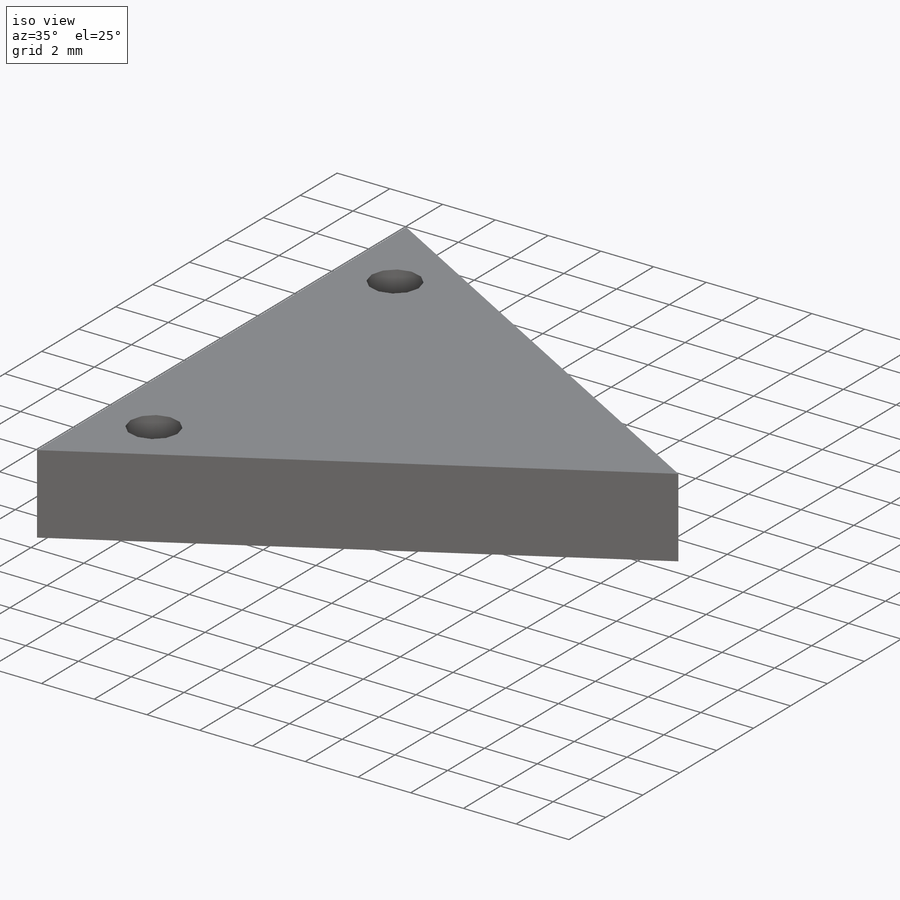
[diagram: iso view]
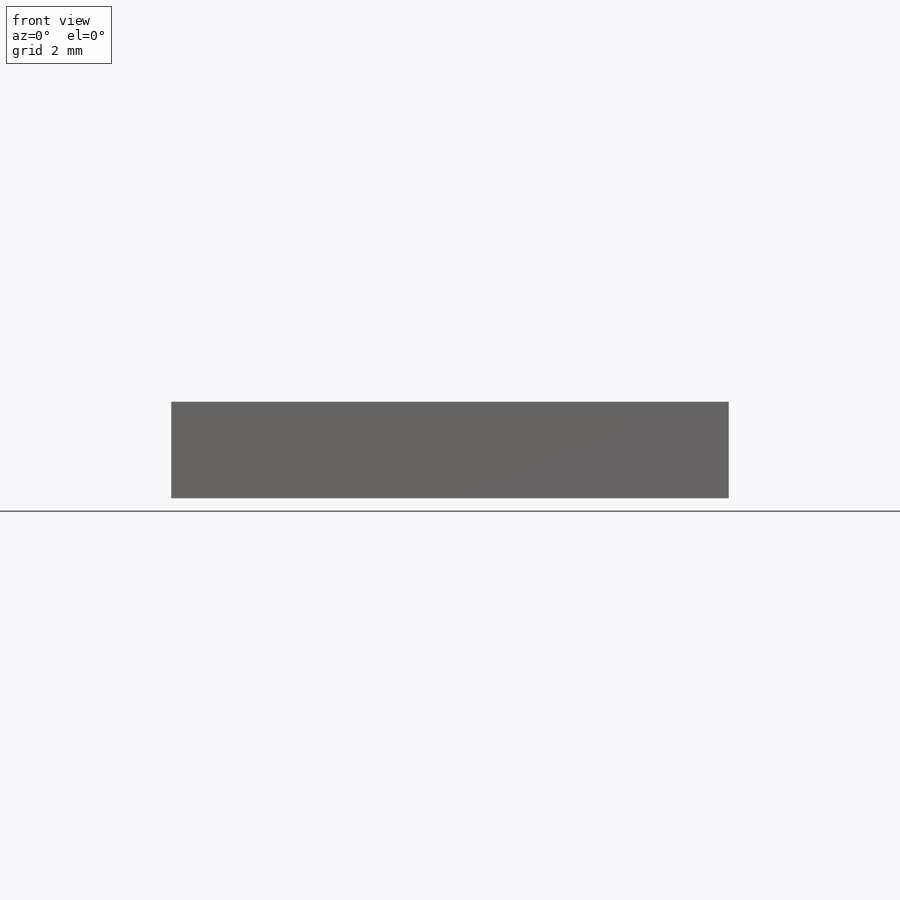
[diagram: front view]
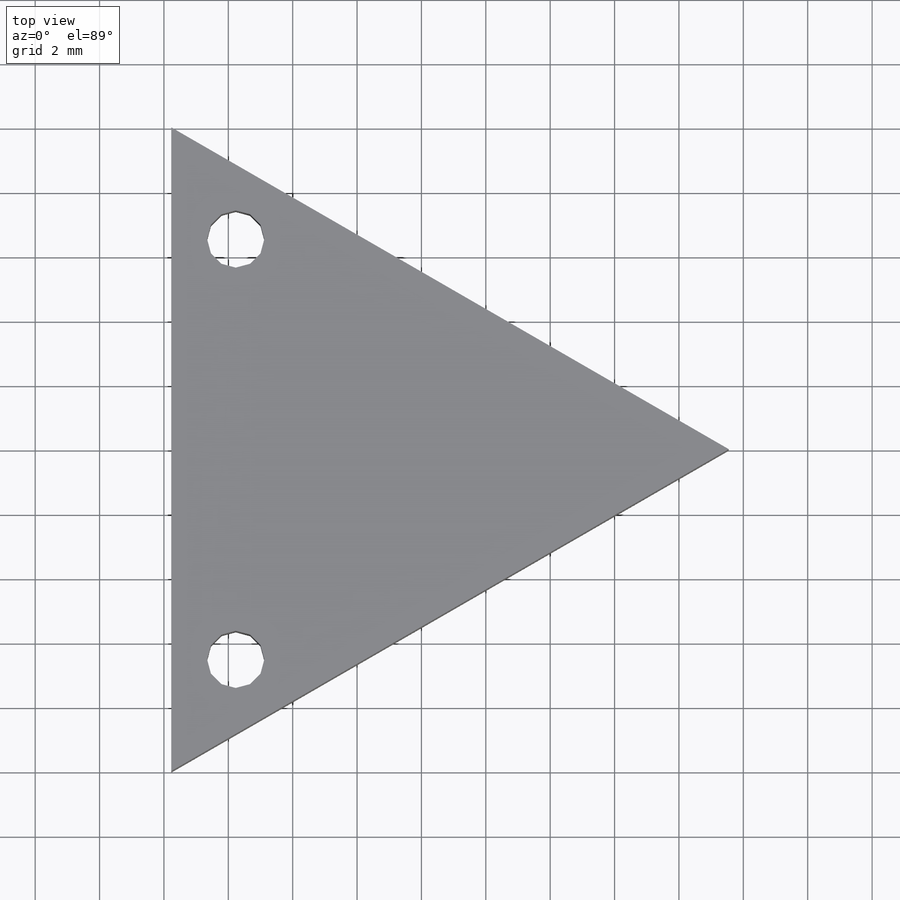
[diagram: top view]
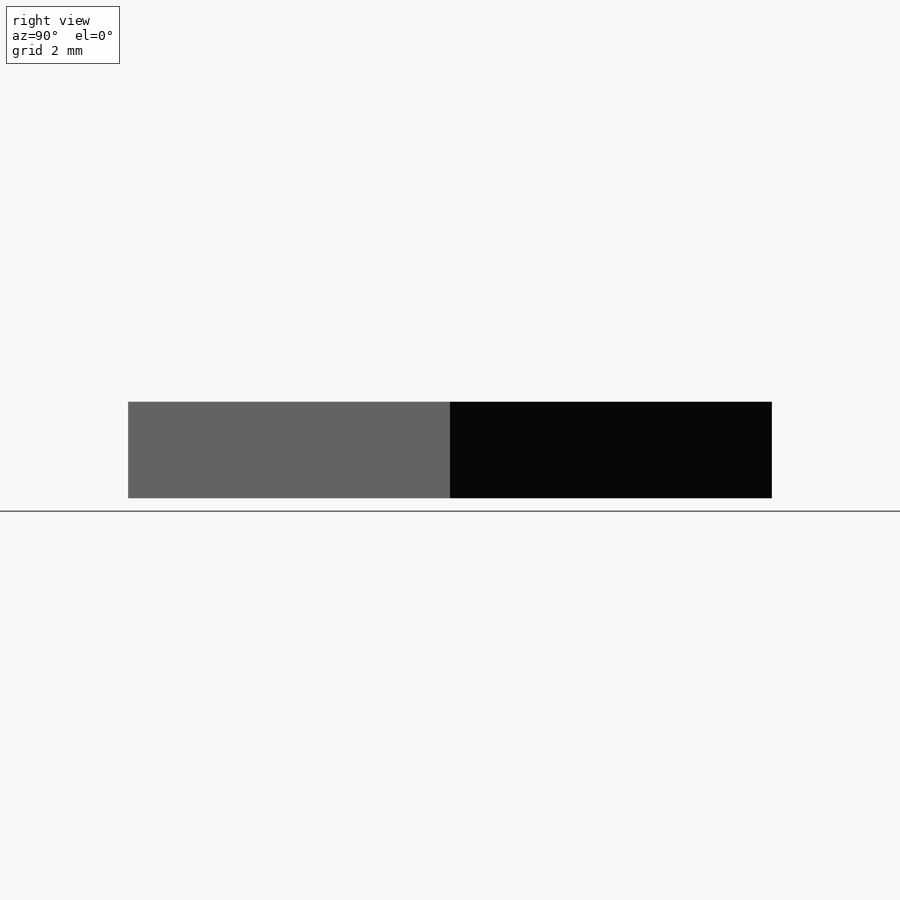
[diagram: right view]
SOLIDWORKS PART (.sldprt)
format: sldprt  version: not decoded by parser v0  size: 171,520 bytes
history: native  units: mm
features: sketch x5, material x1, extrude x1, hole x1, pattern_linear x1 (+14 scaffold rows collapsed)
feature tree (23):
  scaffold x14  (default folders/planes/origin — collapsed)
  material  "Material <not specified>"
  sketch  "Sketch1"  dims[D1=20.0mm D2=20.0mm D3=20.0mm]
  extrude  "Extrude1"  Depth=3mm
  sketch  "Sketch2"
  hole  "#2-56 Tapped Hole1"  Diameter=1.778mm Depth=6.64mm
  sketch  "3DSketch3"  dims[c1.D1=6.53mm c1.D2=6.53mm c2.D1=6.53mm c2.D2=3.77mm]
  sketch  "Sketch6"  dims[hole-wizard template sketch: 47 standard entries collapsed; hole parameters kept: c15.Tap Drill Depth=6.64mm c15.D3=~14.816244mm c15.Drill Angle=118.0deg]
  pattern_linear  "LPattern1"  Count1=2 Count2=1 Spacing1=13.06mm Spacing2=10mm
  sketch  "Sketch9"  dims[D1=4.0mm D2=2.31mm D3=4.0mm D4=2.31mm D5=4.62mm D6=~3.463503mm]
decode coverage: 7 of 8 modeling features carry decoded parameters
note: ~ marks probable driven/reference dimensions
note: suppression state not decoded; provenance and decode notes live in map.json
